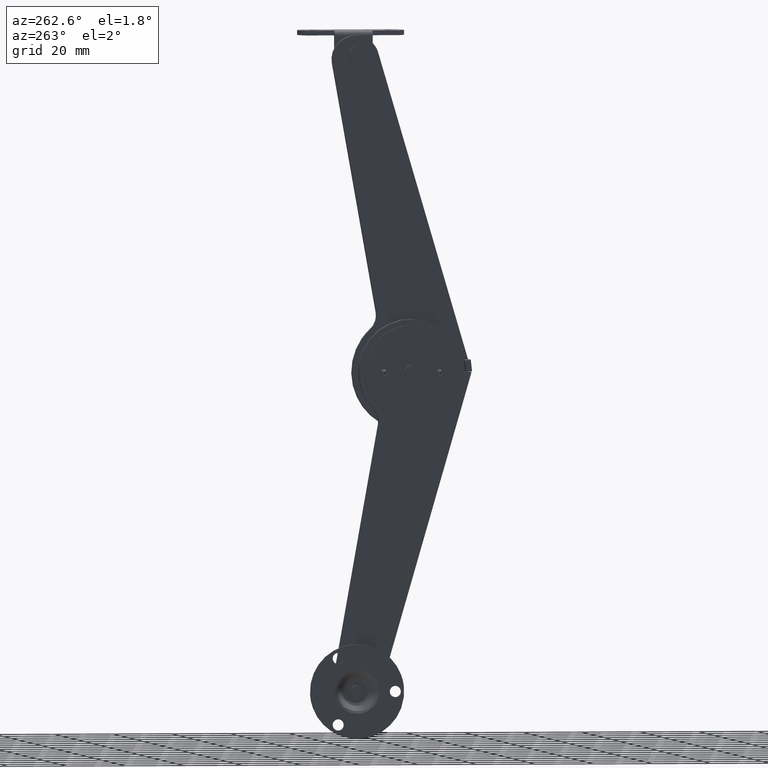
[diagram: clean part render]
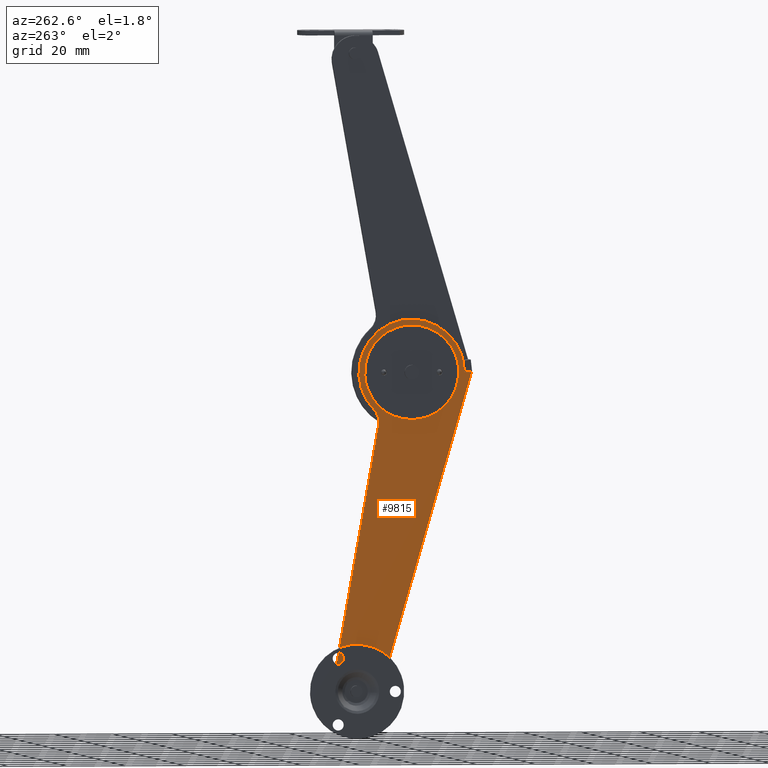
[diagram: same view with one face highlighted and labeled with its STEP entity id]
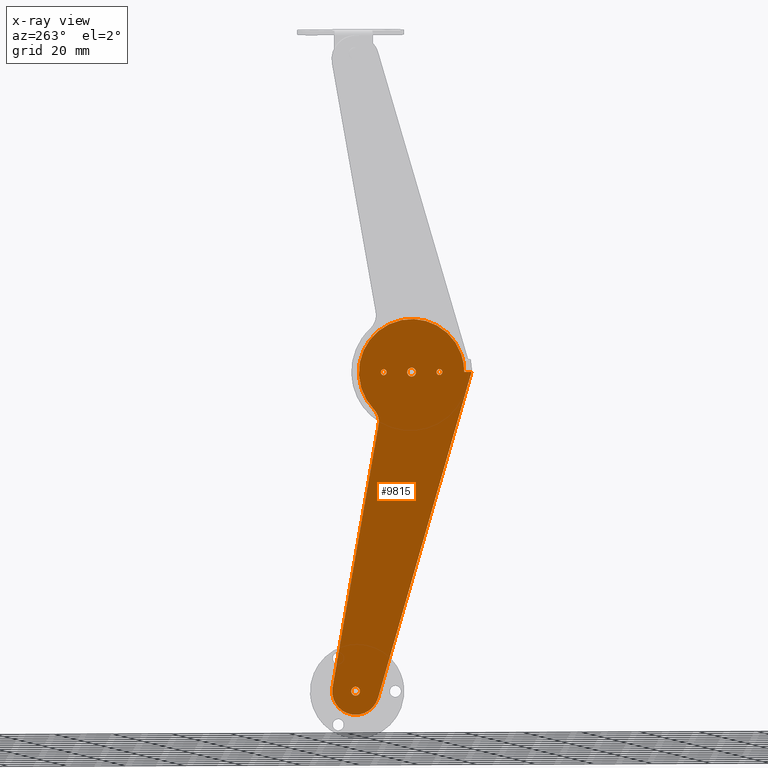
[diagram: x-ray of the same camera — body ghosted, the highlighted face saturated]
A machine part, auxiliary view. The second image highlights one B-rep face of the part: STEP entity #9815.
The next image is the same camera in x-ray: the body ghosted, the highlighted face saturated — about 0% of this face is hidden behind the body in this view.
In plain terms, the highlighted face is a freeform B-spline surface patch.
Its self-contained STEP definition (entity closure, byte-faithful):
#8906=CARTESIAN_POINT('',(4.399994000000131,-29.598205333278781,-0.078459101500275));
#8907=VERTEX_POINT('',#8906);
#8913=CARTESIAN_POINT('',(4.399994000000130,-28.601287999999951,0.999999999999975));
#8914=VERTEX_POINT('',#8913);
#8915=CARTESIAN_POINT('',(4.399994000000131,-29.598205333278781,-0.078459101500275));
#8916=CARTESIAN_POINT('',(4.399994000000130,-29.601287999999954,-0.039290112806888));
#8917=CARTESIAN_POINT('',(4.399994000000130,-29.601287999999951,-2.495219E-014));
#8918=CARTESIAN_POINT('',(4.399994000000130,-29.601287999999951,0.999999999999975));
#8919=CARTESIAN_POINT('',(4.399994000000130,-28.601287999999951,0.999999999999975));
#8927=(BOUNDED_CURVE()B_SPLINE_CURVE(2,(#8915,#8916,#8917,#8918,#8919),.UNSPECIFIED.,.F.,.U.)B_SPLINE_CURVE_WITH_KNOTS((3,2,3),(0.736331298647584,0.750000000000000,1.0),.UNSPECIFIED.)CURVE()GEOMETRIC_REPRESENTATION_ITEM()RATIONAL_B_SPLINE_CURVE((0.969723352028890,0.983986120255564,1.0,0.707106781186548,1.0))REPRESENTATION_ITEM(''));
#8928=EDGE_CURVE('',#8907,#8914,#8927,.T.);
#8930=CARTESIAN_POINT('',(4.399994000000129,-27.604370666721120,0.078459101500225));
#8931=VERTEX_POINT('',#8930);
#8932=CARTESIAN_POINT('',(4.399994000000130,-28.601287999999951,0.999999999999975));
#8933=CARTESIAN_POINT('',(4.399994000000129,-27.676897519079755,0.999999999999975));
#8934=CARTESIAN_POINT('',(4.399994000000129,-27.604370666721120,0.078459101500225));
#8942=(BOUNDED_CURVE()B_SPLINE_CURVE(2,(#8932,#8933,#8934),.UNSPECIFIED.,.F.,.U.)B_SPLINE_CURVE_WITH_KNOTS((3,3),(0.0,0.236331298647584),.UNSPECIFIED.)CURVE()GEOMETRIC_REPRESENTATION_ITEM()RATIONAL_B_SPLINE_CURVE((1.0,0.723120660930983,0.969723352028890))REPRESENTATION_ITEM(''));
#8943=EDGE_CURVE('',#8914,#8931,#8942,.T.);
#8989=CARTESIAN_POINT('',(4.399994000000130,-28.601287999999951,-1.000000000000025));
#8990=VERTEX_POINT('',#8989);
#8991=CARTESIAN_POINT('',(4.399994000000129,-27.604370666721120,0.078459101500225));
#8992=CARTESIAN_POINT('',(4.399994000000130,-27.601287999999951,0.039290112806838));
#8993=CARTESIAN_POINT('',(4.399994000000130,-27.601287999999951,-2.495219E-014));
#8994=CARTESIAN_POINT('',(4.399994000000130,-27.601287999999958,-1.000000000000025));
#8995=CARTESIAN_POINT('',(4.399994000000130,-28.601287999999951,-1.000000000000025));
#9003=(BOUNDED_CURVE()B_SPLINE_CURVE(2,(#8991,#8992,#8993,#8994,#8995),.UNSPECIFIED.,.F.,.U.)B_SPLINE_CURVE_WITH_KNOTS((3,2,3),(0.236331298647584,0.250000000000000,0.500000000000000),.UNSPECIFIED.)CURVE()GEOMETRIC_REPRESENTATION_ITEM()RATIONAL_B_SPLINE_CURVE((0.969723352028890,0.983986120255564,1.0,0.707106781186548,1.0))REPRESENTATION_ITEM(''));
#9004=EDGE_CURVE('',#8931,#8990,#9003,.T.);
#9006=CARTESIAN_POINT('',(4.399994000000130,-28.601287999999951,-1.000000000000025));
#9007=CARTESIAN_POINT('',(4.399994000000130,-29.525678480920142,-1.000000000000025));
#9008=CARTESIAN_POINT('',(4.399994000000131,-29.598205333278781,-0.078459101500275));
#9016=(BOUNDED_CURVE()B_SPLINE_CURVE(2,(#9006,#9007,#9008),.UNSPECIFIED.,.F.,.U.)B_SPLINE_CURVE_WITH_KNOTS((3,3),(0.500000000000000,0.736331298647583),.UNSPECIFIED.)CURVE()GEOMETRIC_REPRESENTATION_ITEM()RATIONAL_B_SPLINE_CURVE((1.0,0.723120660930984,0.969723352028888))REPRESENTATION_ITEM(''));
#9017=EDGE_CURVE('',#8990,#8907,#9016,.T.);
#9092=CARTESIAN_POINT('',(4.399994000000129,-8.603153201615875,-0.061048540151942));
#9093=VERTEX_POINT('',#9092);
#9099=CARTESIAN_POINT('',(4.399994000000130,-9.601288000000000,-1.000000000000026));
#9100=VERTEX_POINT('',#9099);
#9101=CARTESIAN_POINT('',(4.399994000000130,-9.601288000000000,-1.000000000000026));
#9102=CARTESIAN_POINT('',(4.399994000000130,-8.660581934259593,-1.000000000000026));
#9103=CARTESIAN_POINT('',(4.399994000000129,-8.603153201615875,-0.061048540151942));
#9111=(BOUNDED_CURVE()B_SPLINE_CURVE(2,(#9101,#9102,#9103),.UNSPECIFIED.,.F.,.U.)B_SPLINE_CURVE_WITH_KNOTS((3,3),(0.500000000000000,0.739332962028627),.UNSPECIFIED.)CURVE()GEOMETRIC_REPRESENTATION_ITEM()RATIONAL_B_SPLINE_CURVE((1.0,0.719603993533111,0.976072041215970))REPRESENTATION_ITEM(''));
#9112=EDGE_CURVE('',#9100,#9093,#9111,.T.);
#9114=CARTESIAN_POINT('',(4.399994000000129,-10.594297526314310,0.118034235071934));
#9115=VERTEX_POINT('',#9114);
#9116=CARTESIAN_POINT('',(4.399994000000129,-10.594297526314312,0.118034235071934));
#9117=CARTESIAN_POINT('',(4.399994000000131,-10.601288000000002,0.059224120071475));
#9118=CARTESIAN_POINT('',(4.399994000000130,-10.601288000000000,-2.611557E-014));
#9119=CARTESIAN_POINT('',(4.399994000000130,-10.601288000000000,-1.000000000000026));
#9120=CARTESIAN_POINT('',(4.399994000000130,-9.601288000000000,-1.000000000000026));
#9128=(BOUNDED_CURVE()B_SPLINE_CURVE(2,(#9116,#9117,#9118,#9119,#9120),.UNSPECIFIED.,.F.,.U.)B_SPLINE_CURVE_WITH_KNOTS((3,2,3),(0.229562473374316,0.250000000000000,0.500000000000000),.UNSPECIFIED.)CURVE()GEOMETRIC_REPRESENTATION_ITEM()RATIONAL_B_SPLINE_CURVE((0.956026753910876,0.976055948168071,1.0,0.707106781186548,1.0))REPRESENTATION_ITEM(''));
#9129=EDGE_CURVE('',#9115,#9100,#9128,.T.);
#9173=CARTESIAN_POINT('',(4.399994000000130,-9.601288000000000,0.999999999999974));
#9174=VERTEX_POINT('',#9173);
#9175=CARTESIAN_POINT('',(4.399994000000130,-9.601288000000000,0.999999999999974));
#9176=CARTESIAN_POINT('',(4.399994000000129,-10.489462525203406,0.999999999999974));
#9177=CARTESIAN_POINT('',(4.399994000000129,-10.594297526314310,0.118034235071934));
#9185=(BOUNDED_CURVE()B_SPLINE_CURVE(2,(#9175,#9176,#9177),.UNSPECIFIED.,.F.,.U.)B_SPLINE_CURVE_WITH_KNOTS((3,3),(0.0,0.229562473374316),.UNSPECIFIED.)CURVE()GEOMETRIC_REPRESENTATION_ITEM()RATIONAL_B_SPLINE_CURVE((1.0,0.731050833018477,0.956026753910876))REPRESENTATION_ITEM(''));
#9186=EDGE_CURVE('',#9174,#9115,#9185,.T.);
#9188=CARTESIAN_POINT('',(4.399994000000129,-8.603153201615875,-0.061048540151942));
#9189=CARTESIAN_POINT('',(4.399994000000130,-8.601287999999999,-0.030552763917404));
#9190=CARTESIAN_POINT('',(4.399994000000130,-8.601287999999999,-2.611557E-014));
#9191=CARTESIAN_POINT('',(4.399994000000130,-8.601287999999999,0.999999999999974));
#9192=CARTESIAN_POINT('',(4.399994000000130,-9.601288000000000,0.999999999999974));
#9200=(BOUNDED_CURVE()B_SPLINE_CURVE(2,(#9188,#9189,#9190,#9191,#9192),.UNSPECIFIED.,.F.,.U.)B_SPLINE_CURVE_WITH_KNOTS((3,2,3),(0.739332962028627,0.750000000000000,1.0),.UNSPECIFIED.)CURVE()GEOMETRIC_REPRESENTATION_ITEM()RATIONAL_B_SPLINE_CURVE((0.976072041215971,0.987502787653437,1.0,0.707106781186548,1.0))REPRESENTATION_ITEM(''));
#9201=EDGE_CURVE('',#9093,#9174,#9200,.T.);
#9278=CARTESIAN_POINT('',(4.399994000000129,-17.604085802579721,-0.091572812777779));
#9279=VERTEX_POINT('',#9278);
#9285=CARTESIAN_POINT('',(4.399994000000130,-19.101287999999951,-1.500000000000001));
#9286=VERTEX_POINT('',#9285);
#9287=CARTESIAN_POINT('',(4.399994000000130,-19.101287999999951,-1.500000000000001));
#9288=CARTESIAN_POINT('',(4.399994000000130,-17.690228906204702,-1.500000000000002));
#9289=CARTESIAN_POINT('',(4.399994000000129,-17.604085802579714,-0.091572812777779));
#9297=(BOUNDED_CURVE()B_SPLINE_CURVE(2,(#9287,#9288,#9289),.UNSPECIFIED.,.F.,.U.)B_SPLINE_CURVE_WITH_KNOTS((3,3),(0.500000000000000,0.739332961440895),.UNSPECIFIED.)CURVE()GEOMETRIC_REPRESENTATION_ITEM()RATIONAL_B_SPLINE_CURVE((1.0,0.719603994221682,0.976072039956348))REPRESENTATION_ITEM(''));
#9298=EDGE_CURVE('',#9286,#9279,#9297,.T.);
#9300=CARTESIAN_POINT('',(4.399994000000131,-20.590802289157029,0.177051355252875));
#9301=VERTEX_POINT('',#9300);
#9302=CARTESIAN_POINT('',(4.399994000000132,-20.590802289157025,0.177051355252875));
#9303=CARTESIAN_POINT('',(4.399994000000130,-20.601287999999954,0.088836182780149));
#9304=CARTESIAN_POINT('',(4.399994000000130,-20.601287999999951,-1.169578E-015));
#9305=CARTESIAN_POINT('',(4.399994000000130,-20.601287999999947,-1.500000000000001));
#9306=CARTESIAN_POINT('',(4.399994000000130,-19.101287999999951,-1.500000000000001));
#9314=(BOUNDED_CURVE()B_SPLINE_CURVE(2,(#9302,#9303,#9304,#9305,#9306),.UNSPECIFIED.,.F.,.U.)B_SPLINE_CURVE_WITH_KNOTS((3,2,3),(0.229562472774116,0.250000000000000,0.500000000000000),.UNSPECIFIED.)CURVE()GEOMETRIC_REPRESENTATION_ITEM()RATIONAL_B_SPLINE_CURVE((0.956026752734460,0.976055947464893,1.0,0.707106781186548,1.0))REPRESENTATION_ITEM(''));
#9315=EDGE_CURVE('',#9301,#9286,#9314,.T.);
#9359=CARTESIAN_POINT('',(4.399994000000130,-19.101287999999951,1.499999999999999));
#9360=VERTEX_POINT('',#9359);
#9361=CARTESIAN_POINT('',(4.399994000000130,-19.101287999999951,1.499999999999999));
#9362=CARTESIAN_POINT('',(4.399994000000130,-20.433549783040348,1.499999999999999));
#9363=CARTESIAN_POINT('',(4.399994000000131,-20.590802289157029,0.177051355252875));
#9371=(BOUNDED_CURVE()B_SPLINE_CURVE(2,(#9361,#9362,#9363),.UNSPECIFIED.,.F.,.U.)B_SPLINE_CURVE_WITH_KNOTS((3,3),(0.0,0.229562472774116),.UNSPECIFIED.)CURVE()GEOMETRIC_REPRESENTATION_ITEM()RATIONAL_B_SPLINE_CURVE((1.0,0.731050833721655,0.956026752734460))REPRESENTATION_ITEM(''));
#9372=EDGE_CURVE('',#9360,#9301,#9371,.T.);
#9374=CARTESIAN_POINT('',(4.399994000000129,-17.604085802579718,-0.091572812777779));
#9375=CARTESIAN_POINT('',(4.399994000000129,-17.601287999999947,-0.045829148433122));
#9376=CARTESIAN_POINT('',(4.399994000000130,-17.601287999999951,-1.169578E-015));
#9377=CARTESIAN_POINT('',(4.399994000000130,-17.601287999999951,1.500000000000000));
#9378=CARTESIAN_POINT('',(4.399994000000130,-19.101287999999951,1.499999999999999));
#9386=(BOUNDED_CURVE()B_SPLINE_CURVE(2,(#9374,#9375,#9376,#9377,#9378),.UNSPECIFIED.,.F.,.U.)B_SPLINE_CURVE_WITH_KNOTS((3,2,3),(0.739332961440894,0.750000000000000,1.0),.UNSPECIFIED.)CURVE()GEOMETRIC_REPRESENTATION_ITEM()RATIONAL_B_SPLINE_CURVE((0.976072039956347,0.987502786964865,1.0,0.707106781186548,1.0))REPRESENTATION_ITEM(''));
#9387=EDGE_CURVE('',#9279,#9360,#9386,.T.);
#9464=CARTESIAN_POINT('',(4.399994000000130,1.497202197420230,-108.090428812777600));
#9465=VERTEX_POINT('',#9464);
#9471=CARTESIAN_POINT('',(4.399994000000130,0.0,-109.498855999999800));
#9472=VERTEX_POINT('',#9471);
#9473=CARTESIAN_POINT('',(4.399994000000130,0.0,-109.498855999999800));
#9474=CARTESIAN_POINT('',(4.399994000000130,1.411059093795253,-109.498855999999800));
#9475=CARTESIAN_POINT('',(4.399994000000130,1.497202197420230,-108.090428812777620));
#9483=(BOUNDED_CURVE()B_SPLINE_CURVE(2,(#9473,#9474,#9475),.UNSPECIFIED.,.F.,.U.)B_SPLINE_CURVE_WITH_KNOTS((3,3),(0.500000000000000,0.739332961440895),.UNSPECIFIED.)CURVE()GEOMETRIC_REPRESENTATION_ITEM()RATIONAL_B_SPLINE_CURVE((1.0,0.719603994221682,0.976072039956348))REPRESENTATION_ITEM(''));
#9484=EDGE_CURVE('',#9472,#9465,#9483,.T.);
#9486=CARTESIAN_POINT('',(4.399994000000131,-1.489514289157079,-107.821804644746900));
#9487=VERTEX_POINT('',#9486);
#9488=CARTESIAN_POINT('',(4.399994000000131,-1.489514289157079,-107.821804644746950));
#9489=CARTESIAN_POINT('',(4.399994000000130,-1.500000000000000,-107.910019817219690));
#9490=CARTESIAN_POINT('',(4.399994000000130,-1.500000000000000,-107.998855999999800));
#9491=CARTESIAN_POINT('',(4.399994000000130,-1.500000000000000,-109.498855999999790));
#9492=CARTESIAN_POINT('',(4.399994000000130,0.0,-109.498855999999800));
#9500=(BOUNDED_CURVE()B_SPLINE_CURVE(2,(#9488,#9489,#9490,#9491,#9492),.UNSPECIFIED.,.F.,.U.)B_SPLINE_CURVE_WITH_KNOTS((3,2,3),(0.229562472774115,0.250000000000000,0.500000000000000),.UNSPECIFIED.)CURVE()GEOMETRIC_REPRESENTATION_ITEM()RATIONAL_B_SPLINE_CURVE((0.956026752734458,0.976055947464892,1.0,0.707106781186548,1.0))REPRESENTATION_ITEM(''));
#9501=EDGE_CURVE('',#9487,#9472,#9500,.T.);
#9545=CARTESIAN_POINT('',(4.399994000000130,0.0,-106.498855999999800));
#9546=VERTEX_POINT('',#9545);
#9547=CARTESIAN_POINT('',(4.399994000000130,0.0,-106.498855999999800));
#9548=CARTESIAN_POINT('',(4.399994000000132,-1.332261783040384,-106.498855999999800));
#9549=CARTESIAN_POINT('',(4.399994000000131,-1.489514289157079,-107.821804644746850));
#9557=(BOUNDED_CURVE()B_SPLINE_CURVE(2,(#9547,#9548,#9549),.UNSPECIFIED.,.F.,.U.)B_SPLINE_CURVE_WITH_KNOTS((3,3),(0.0,0.229562472774115),.UNSPECIFIED.)CURVE()GEOMETRIC_REPRESENTATION_ITEM()RATIONAL_B_SPLINE_CURVE((1.0,0.731050833721656,0.956026752734458))REPRESENTATION_ITEM(''));
#9558=EDGE_CURVE('',#9546,#9487,#9557,.T.);
#9560=CARTESIAN_POINT('',(4.399994000000130,1.497202197420230,-108.090428812777530));
#9561=CARTESIAN_POINT('',(4.399994000000130,1.500000000000000,-108.044685148432920));
#9562=CARTESIAN_POINT('',(4.399994000000130,1.500000000000000,-107.998855999999800));
#9563=CARTESIAN_POINT('',(4.399994000000130,1.500000000000000,-106.498855999999790));
#9564=CARTESIAN_POINT('',(4.399994000000130,0.0,-106.498855999999800));
#9572=(BOUNDED_CURVE()B_SPLINE_CURVE(2,(#9560,#9561,#9562,#9563,#9564),.UNSPECIFIED.,.F.,.U.)B_SPLINE_CURVE_WITH_KNOTS((3,2,3),(0.739332961440894,0.750000000000000,1.0),.UNSPECIFIED.)CURVE()GEOMETRIC_REPRESENTATION_ITEM()RATIONAL_B_SPLINE_CURVE((0.976072039956346,0.987502786964864,1.0,0.707106781186548,1.0))REPRESENTATION_ITEM(''));
#9573=EDGE_CURVE('',#9465,#9546,#9572,.T.);
#9705=CARTESIAN_POINT('',(4.399994000000105,-41.978827278852812,24.692885292739241));
#9706=CARTESIAN_POINT('',(4.399994000000105,10.374470059868980,24.692885292739241));
#9707=CARTESIAN_POINT('',(4.399994000000105,-41.978827278852812,-122.689130436179600));
#9708=CARTESIAN_POINT('',(4.399994000000105,10.374470059868980,-122.689130436179600));
#9709=B_SPLINE_SURFACE_WITH_KNOTS('',1,1,((#9705,#9707),(#9706,#9708)),.UNSPECIFIED.,.F.,.F.,.U.,(2,2),(2,2),(0.0,52.353297338721781),(0.0,147.382015728918900),.UNSPECIFIED.);
#9710=CARTESIAN_POINT('',(4.399994000000130,-37.101303000000051,1.034713E-015));
#9711=VERTEX_POINT('',#9710);
#9712=CARTESIAN_POINT('',(4.399994000000130,-39.601296068782297,-2.664535E-014));
#9713=VERTEX_POINT('',#9712);
#9714=CARTESIAN_POINT('',(4.399994000000130,-37.101303000000051,1.034713E-015));
#9715=CARTESIAN_POINT('',(4.399994000000130,-39.601296068782297,-2.664535E-014));
#9716=QUASI_UNIFORM_CURVE('',1,(#9714,#9715),.UNSPECIFIED.,.F.,.U.);
#9717=EDGE_CURVE('',#9711,#9713,#9716,.T.);
#9718=ORIENTED_EDGE('',*,*,#9717,.F.);
#9719=CARTESIAN_POINT('',(4.399994000000130,-6.222050279855890,-12.574767923900479));
#9720=VERTEX_POINT('',#9719);
#9721=CARTESIAN_POINT('',(4.399994000000130,-6.222050279855890,-12.574767923900479));
#9722=CARTESIAN_POINT('',(4.399994000000130,3.387140600215982,-2.732900202962302));
#9723=CARTESIAN_POINT('',(4.399994000000130,-3.585111087136516,9.124021879243985));
#9724=CARTESIAN_POINT('',(4.399994000000130,-10.557362774489016,20.980943961450279));
#9725=CARTESIAN_POINT('',(4.399994000000130,-23.829332792876670,17.367951616041150));
#9726=CARTESIAN_POINT('',(4.399994000000130,-37.101302811264318,13.754959270632028));
#9727=CARTESIAN_POINT('',(4.399994000000130,-37.101303000000051,1.034713E-015));
#9735=(BOUNDED_CURVE()B_SPLINE_CURVE(2,(#9721,#9722,#9723,#9724,#9725,#9726,#9727),.UNSPECIFIED.,.F.,.U.)B_SPLINE_CURVE_WITH_KNOTS((3,2,2,3),(0.0,0.333333333333333,0.666666666666667,1.0),.UNSPECIFIED.)CURVE()GEOMETRIC_REPRESENTATION_ITEM()RATIONAL_B_SPLINE_CURVE((1.0,0.794565387561586,1.0,0.794565387561586,1.0,0.794565387561586,1.0))REPRESENTATION_ITEM(''));
#9736=EDGE_CURVE('',#9720,#9711,#9735,.T.);
#9737=ORIENTED_EDGE('',*,*,#9736,.F.);
#9738=CARTESIAN_POINT('',(4.399994000000130,-7.834135366304619,-17.828890237279001));
#9739=VERTEX_POINT('',#9738);
#9740=CARTESIAN_POINT('',(4.399994000000130,-6.222050279855886,-12.574767923900490));
#9741=CARTESIAN_POINT('',(4.399994000000130,-8.381550103206598,-14.786557382235596));
#9742=CARTESIAN_POINT('',(4.399994000000130,-7.834135366304616,-17.828890237279001));
#9750=(BOUNDED_CURVE()B_SPLINE_CURVE(2,(#9740,#9741,#9742),.UNSPECIFIED.,.F.,.U.)CURVE()GEOMETRIC_REPRESENTATION_ITEM()QUASI_UNIFORM_CURVE()RATIONAL_B_SPLINE_CURVE((1.0,0.888957646434028,1.0))REPRESENTATION_ITEM(''));
#9751=EDGE_CURVE('',#9720,#9739,#9750,.T.);
#9752=ORIENTED_EDGE('',*,*,#9751,.T.);
#9753=CARTESIAN_POINT('',(4.399994000000130,7.877594000000000,-106.604660000000000));
#9754=VERTEX_POINT('',#9753);
#9755=CARTESIAN_POINT('',(4.399994000000130,7.877594000000000,-106.604660000000000));
#9756=CARTESIAN_POINT('',(4.399994000000130,-7.834135366304619,-17.828890237279001));
#9757=QUASI_UNIFORM_CURVE('',1,(#9755,#9756),.UNSPECIFIED.,.F.,.U.);
#9758=EDGE_CURVE('',#9754,#9739,#9757,.T.);
#9759=ORIENTED_EDGE('',*,*,#9758,.F.);
#9760=CARTESIAN_POINT('',(4.399994000000130,7.878462702980789,-106.609674428807390));
#9761=VERTEX_POINT('',#9760);
#9762=CARTESIAN_POINT('',(4.399994000000130,7.878462702980789,-106.609674428807390));
#9763=CARTESIAN_POINT('',(4.399994000000130,7.877594000000000,-106.604660000000000));
#9764=QUASI_UNIFORM_CURVE('',1,(#9762,#9763),.UNSPECIFIED.,.F.,.U.);
#9765=EDGE_CURVE('',#9761,#9754,#9764,.T.);
#9766=ORIENTED_EDGE('',*,*,#9765,.F.);
#9767=CARTESIAN_POINT('',(4.399994000000130,-7.681877691106850,-110.232408134801010));
#9768=VERTEX_POINT('',#9767);
#9769=CARTESIAN_POINT('',(4.399994000000130,-7.681877691106845,-110.232408134801010));
#9770=CARTESIAN_POINT('',(4.399994000000129,-5.566241585523212,-117.508736073942490));
#9771=CARTESIAN_POINT('',(4.399994000000130,1.814031778348678,-115.790472565715900));
#9772=CARTESIAN_POINT('',(4.399994000000129,9.194305142220571,-114.072209057489250));
#9773=CARTESIAN_POINT('',(4.399994000000130,7.878462702980796,-106.609674428807390));
#9781=(BOUNDED_CURVE()B_SPLINE_CURVE(2,(#9769,#9770,#9771,#9772,#9773),.UNSPECIFIED.,.F.,.U.)B_SPLINE_CURVE_WITH_KNOTS((3,2,3),(0.0,0.500000000000000,1.0),.UNSPECIFIED.)CURVE()GEOMETRIC_REPRESENTATION_ITEM()RATIONAL_B_SPLINE_CURVE((1.0,0.726011210554221,1.0,0.726011210554221,1.0))REPRESENTATION_ITEM(''));
#9782=EDGE_CURVE('',#9768,#9761,#9781,.T.);
#9783=ORIENTED_EDGE('',*,*,#9782,.F.);
#9784=CARTESIAN_POINT('',(4.399994000000130,-39.601296068782297,-2.664535E-014));
#9785=CARTESIAN_POINT('',(4.399994000000130,-7.681877691106850,-110.232408134801010));
#9786=QUASI_UNIFORM_CURVE('',1,(#9784,#9785),.UNSPECIFIED.,.F.,.U.);
#9787=EDGE_CURVE('',#9713,#9768,#9786,.T.);
#9788=ORIENTED_EDGE('',*,*,#9787,.F.);
#9789=EDGE_LOOP('',(#9718,#9737,#9752,#9759,#9766,#9783,#9788));
#9790=FACE_OUTER_BOUND('',#9789,.T.);
#9791=ORIENTED_EDGE('',*,*,#9484,.T.);
#9792=ORIENTED_EDGE('',*,*,#9573,.T.);
#9793=ORIENTED_EDGE('',*,*,#9558,.T.);
#9794=ORIENTED_EDGE('',*,*,#9501,.T.);
#9795=EDGE_LOOP('',(#9791,#9792,#9793,#9794));
#9796=FACE_BOUND('',#9795,.T.);
#9797=ORIENTED_EDGE('',*,*,#9298,.T.);
#9798=ORIENTED_EDGE('',*,*,#9387,.T.);
#9799=ORIENTED_EDGE('',*,*,#9372,.T.);
#9800=ORIENTED_EDGE('',*,*,#9315,.T.);
#9801=EDGE_LOOP('',(#9797,#9798,#9799,#9800));
#9802=FACE_BOUND('',#9801,.T.);
#9803=ORIENTED_EDGE('',*,*,#9112,.T.);
#9804=ORIENTED_EDGE('',*,*,#9201,.T.);
#9805=ORIENTED_EDGE('',*,*,#9186,.T.);
#9806=ORIENTED_EDGE('',*,*,#9129,.T.);
#9807=EDGE_LOOP('',(#9803,#9804,#9805,#9806));
#9808=FACE_BOUND('',#9807,.T.);
#9809=ORIENTED_EDGE('',*,*,#9017,.F.);
#9810=ORIENTED_EDGE('',*,*,#9004,.F.);
#9811=ORIENTED_EDGE('',*,*,#8943,.F.);
#9812=ORIENTED_EDGE('',*,*,#8928,.F.);
#9813=EDGE_LOOP('',(#9809,#9810,#9811,#9812));
#9814=FACE_BOUND('',#9813,.T.);
#9815=ADVANCED_FACE('',(#9790,#9796,#9802,#9808,#9814),#9709,.T.);